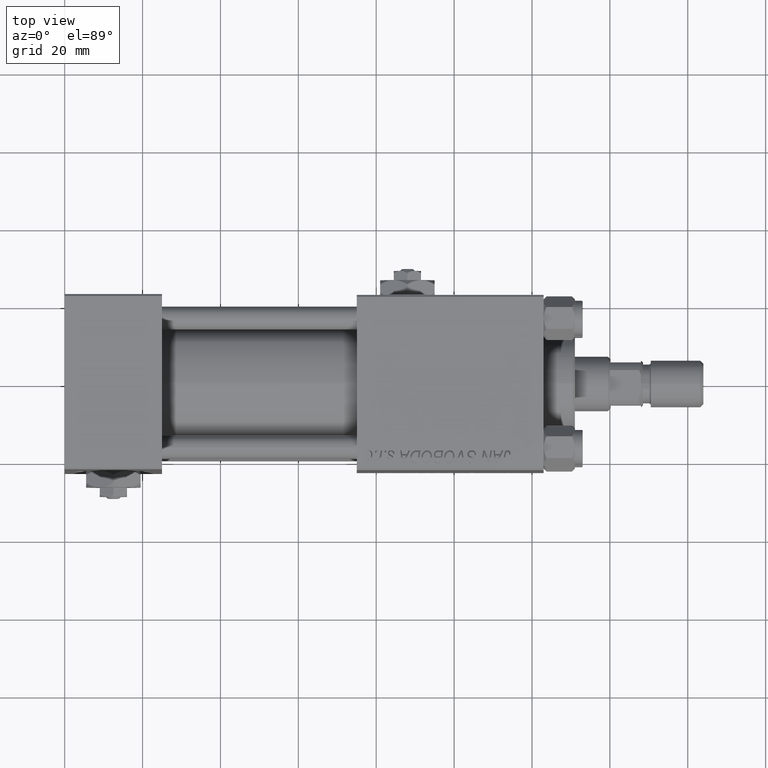
[diagram: clean part render]
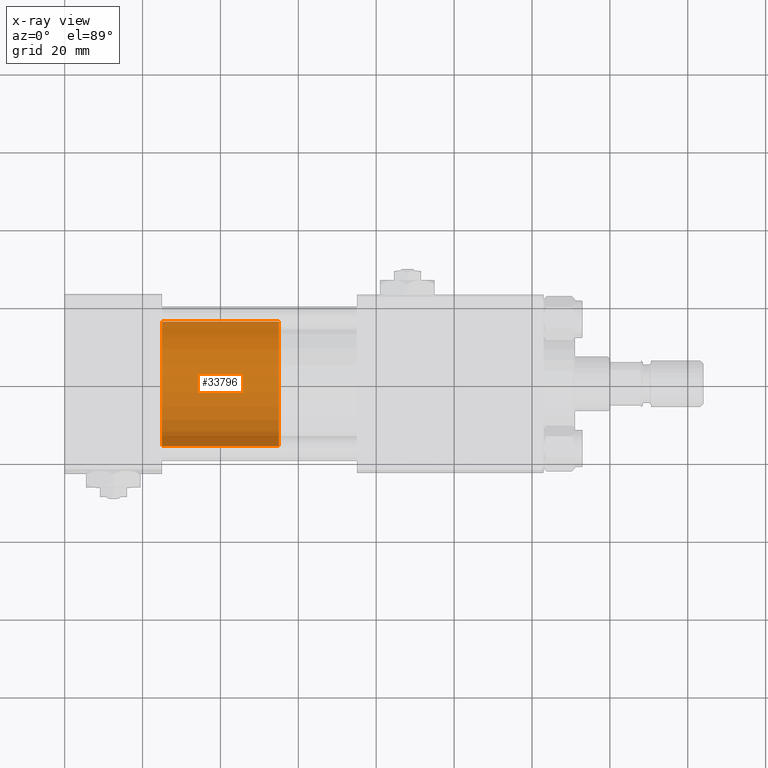
[diagram: x-ray — body ghosted, one internal face saturated and labeled with its STEP entity id]
A machine part, top view, then the same camera in x-ray: the body is ghosted and one INTERNAL B-rep face — a face not visible from any outside direction — is saturated and labeled: STEP entity #33796.
In plain terms, the highlighted cylindrical surface (partial cylindrical patch) has radius 16 mm, axis along (-1, 0, 0).
Its self-contained STEP definition (entity closure, byte-faithful):
#1068 = EDGE_CURVE ( 'NONE', #22276, #15392, #13911, .T. ) ;
#1442 = EDGE_LOOP ( 'NONE', ( #6684, #29937, #18009, #23705 ) ) ;
#3273 = CARTESIAN_POINT ( 'NONE',  ( -16.00000000000000000, 0.000000000000000000, 30.00000000000000000 ) ) ;
#3619 = CARTESIAN_POINT ( 'NONE',  ( -16.00000000000000000, 0.000000000000000000, 30.00000000000000000 ) ) ;
#3811 = DIRECTION ( 'NONE',  ( 0.000000000000000000, 0.000000000000000000, 1.000000000000000000 ) ) ;
#4798 = VECTOR ( 'NONE', #14689, 1000.000000000000000 ) ;
#6271 = CARTESIAN_POINT ( 'NONE',  ( 16.00000000000000000, 1.959434878635765131E-15, 30.00000000000000000 ) ) ;
#6684 = ORIENTED_EDGE ( 'NONE', *, *, #8675, .F. ) ;
#7206 = EDGE_CURVE ( 'NONE', #15392, #21520, #52202, .T. ) ;
#8536 = DIRECTION ( 'NONE',  ( 1.000000000000000000, 0.000000000000000000, 0.000000000000000000 ) ) ;
#8675 = EDGE_CURVE ( 'NONE', #22276, #49834, #39563, .T. ) ;
#13911 = LINE ( 'NONE', #6271, #23424 ) ;
#13951 = DIRECTION ( 'NONE',  ( -0.000000000000000000, -0.000000000000000000, -1.000000000000000000 ) ) ;
#14689 = DIRECTION ( 'NONE',  ( -0.000000000000000000, -0.000000000000000000, -1.000000000000000000 ) ) ;
#15392 = VERTEX_POINT ( 'NONE', #18885 ) ;
#18009 = ORIENTED_EDGE ( 'NONE', *, *, #7206, .T. ) ;
#18885 = CARTESIAN_POINT ( 'NONE',  ( 16.00000000000000000, 1.959434878635765131E-15, 0.000000000000000000 ) ) ;
#18920 = LINE ( 'NONE', #3619, #4798 ) ;
#21520 = VERTEX_POINT ( 'NONE', #21872 ) ;
#21872 = CARTESIAN_POINT ( 'NONE',  ( -16.00000000000000000, 0.000000000000000000, 0.000000000000000000 ) ) ;
#22276 = VERTEX_POINT ( 'NONE', #29789 ) ;
#23424 = VECTOR ( 'NONE', #29998, 1000.000000000000000 ) ;
#23705 = ORIENTED_EDGE ( 'NONE', *, *, #41616, .F. ) ;
#26357 = DIRECTION ( 'NONE',  ( -1.000000000000000000, 0.000000000000000000, 0.000000000000000000 ) ) ;
#29775 = DIRECTION ( 'NONE',  ( 1.000000000000000000, 0.000000000000000000, 0.000000000000000000 ) ) ;
#29789 = CARTESIAN_POINT ( 'NONE',  ( 16.00000000000000000, 1.959434878635765131E-15, 30.00000000000000000 ) ) ;
#29937 = ORIENTED_EDGE ( 'NONE', *, *, #1068, .T. ) ;
#29998 = DIRECTION ( 'NONE',  ( -0.000000000000000000, -0.000000000000000000, -1.000000000000000000 ) ) ;
#32436 = CYLINDRICAL_SURFACE ( 'NONE', #38490, 16.00000000000000000 ) ;
#33459 = CARTESIAN_POINT ( 'NONE',  ( 0.000000000000000000, 0.000000000000000000, 0.000000000000000000 ) ) ;
#33796 = ADVANCED_FACE ( 'NONE', ( #37689 ), #32436, .T. ) ;
#37689 = FACE_OUTER_BOUND ( 'NONE', #1442, .T. ) ;
#38490 = AXIS2_PLACEMENT_3D ( 'NONE', #48544, #13951, #26357 ) ;
#38703 = AXIS2_PLACEMENT_3D ( 'NONE', #33459, #41128, #29775 ) ;
#39563 = CIRCLE ( 'NONE', #43786, 16.00000000000000000 ) ;
#40452 = CARTESIAN_POINT ( 'NONE',  ( 0.000000000000000000, 0.000000000000000000, 30.00000000000000000 ) ) ;
#41128 = DIRECTION ( 'NONE',  ( 0.000000000000000000, 0.000000000000000000, 1.000000000000000000 ) ) ;
#41616 = EDGE_CURVE ( 'NONE', #49834, #21520, #18920, .T. ) ;
#43786 = AXIS2_PLACEMENT_3D ( 'NONE', #40452, #3811, #8536 ) ;
#48544 = CARTESIAN_POINT ( 'NONE',  ( 0.000000000000000000, 0.000000000000000000, 30.00000000000000000 ) ) ;
#49834 = VERTEX_POINT ( 'NONE', #3273 ) ;
#52202 = CIRCLE ( 'NONE', #38703, 16.00000000000000000 ) ;